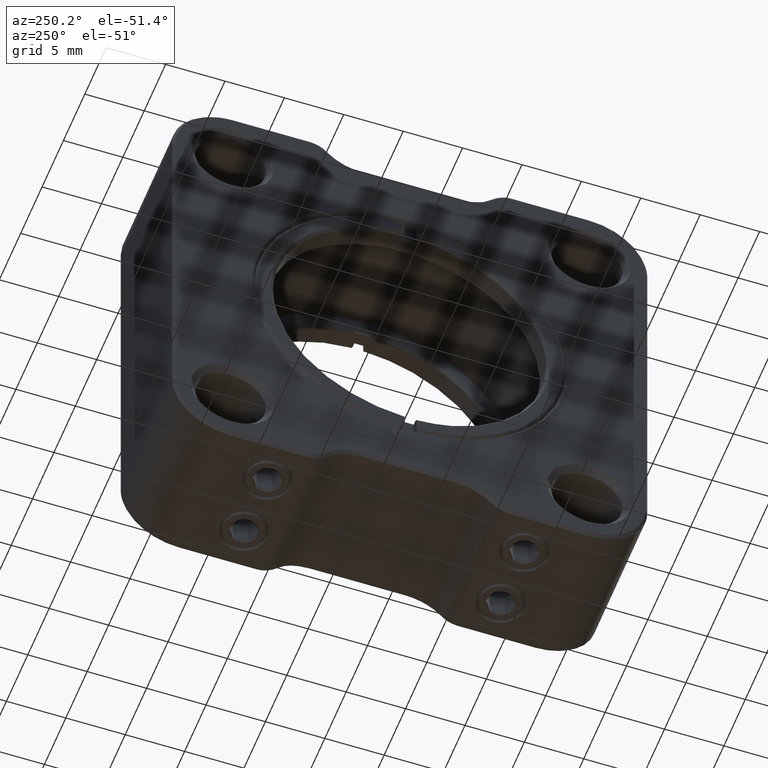
[diagram: clean part render]
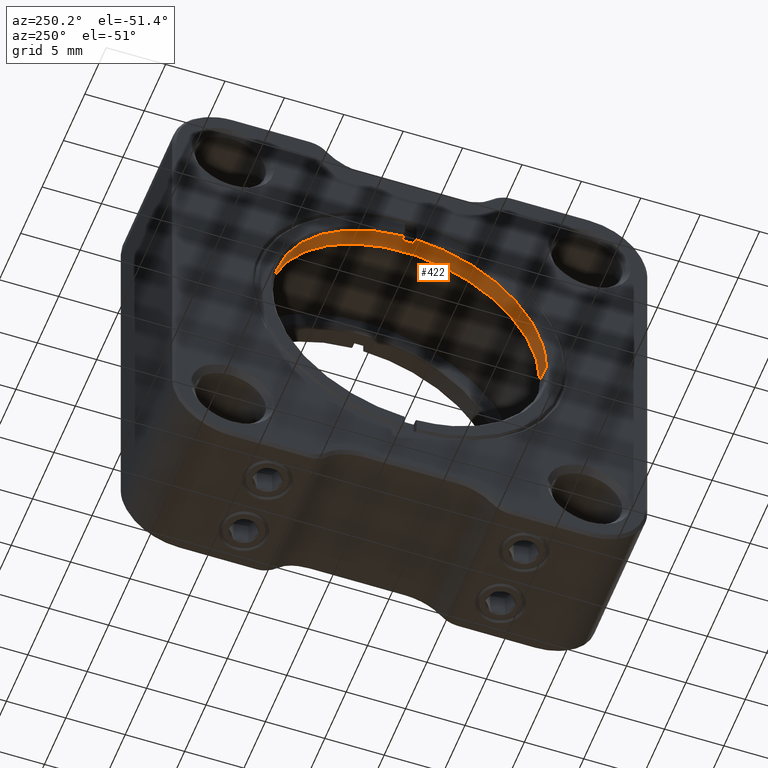
[diagram: same view with one face highlighted and labeled with its STEP entity id]
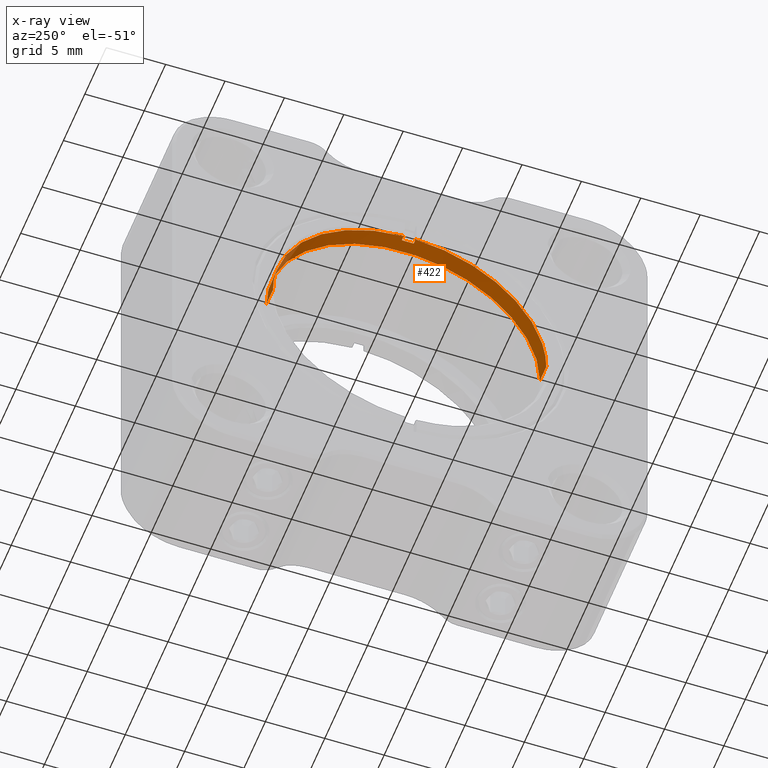
[diagram: x-ray of the same camera — body ghosted, the highlighted face saturated]
A machine part, auxiliary view. The second image highlights one B-rep face of the part: STEP entity #422.
The next image is the same camera in x-ray: the body ghosted, the highlighted face saturated — about 0% of this face is hidden behind the body in this view.
In plain terms, the highlighted face is a freeform B-spline surface patch.
Its self-contained STEP definition (entity closure, byte-faithful):
#5 = CARTESIAN_POINT ( 'NONE',  ( -20.25960063692989976, 2.275967890075781153, 51.50813033711986577 ) ) ;
#286 = ORIENTED_EDGE ( 'NONE', *, *, #10347, .T. ) ;
#306 = CARTESIAN_POINT ( 'NONE',  ( -20.25960063692989976, 1.609301223409109971, 51.49362955075549309 ) ) ;
#422 = ADVANCED_FACE ( 'NONE', ( #3724 ), #2092, .T. ) ;
#500 = CARTESIAN_POINT ( 'NONE',  ( -19.05960063692990047, -9.395198776590881096, 63.00900000000006429 ) ) ;
#574 = CARTESIAN_POINT ( 'NONE',  ( -20.70960063692990261, -4.899068598296539179, 51.21050010966101951 ) ) ;
#905 = CARTESIAN_POINT ( 'NONE',  ( -19.20960063692990261, 13.61380122340909793, 40.00000000000000000 ) ) ;
#1040 = CARTESIAN_POINT ( 'NONE',  ( -20.85960063692989763, -9.395198776590881096, 63.00900000000006429 ) ) ;
#1074 = VERTEX_POINT ( 'NONE', #10610 ) ;
#1201 = CARTESIAN_POINT ( 'NONE',  ( -20.25960063692989976, 2.609301223409109749, 51.49362955075549309 ) ) ;
#1511 = VERTEX_POINT ( 'NONE', #10658 ) ;
#1885 =( BOUNDED_CURVE ( )  B_SPLINE_CURVE ( 3, ( #6969, #11515, #10633, #2438 ),
 .UNSPECIFIED., .F., .F. ) 
 B_SPLINE_CURVE_WITH_KNOTS ( ( 4, 4 ),
 ( 0.000000000000000000, 1.000000000000000000 ),
 .UNSPECIFIED. ) 
 CURVE ( )  GEOMETRIC_REPRESENTATION_ITEM ( )  RATIONAL_B_SPLINE_CURVE ( ( 0.5002363333335543283, 0.5073257439408531688, 0.6739136328296684297, 1.000000000000000000 ) ) 
 REPRESENTATION_ITEM ( '' )  );
#1966 = CARTESIAN_POINT ( 'NONE',  ( -20.70960063692990261, -9.395198776590889977, 40.00000000000000000 ) ) ;
#2092 =( BOUNDED_SURFACE ( )  B_SPLINE_SURFACE ( 1, 3, ( 
 ( #4510, #3782, #1040, #2712 ),
 ( #11079, #4013, #500, #9511 ) ),
 .UNSPECIFIED., .F., .F., .F. ) 
 B_SPLINE_SURFACE_WITH_KNOTS ( ( 2, 2 ),
 ( 4, 4 ),
 ( 0.000000000000000000, 1.000000000000000000 ),
 ( 0.000000000000000000, 1.000000000000000000 ),
 .UNSPECIFIED. ) 
 GEOMETRIC_REPRESENTATION_ITEM ( )  RATIONAL_B_SPLINE_SURFACE ( (
 ( 1.000000000000000000, 0.3333333333333329818, 0.3333333333333329818, 1.000000000000000000),
 ( 1.000000000000000000, 0.3333333333333329818, 0.3333333333333329818, 1.000000000000000000) ) ) 
 REPRESENTATION_ITEM ( '' )  SURFACE ( )  );
#2277 = ORIENTED_EDGE ( 'NONE', *, *, #3977, .F. ) ;
#2395 = EDGE_CURVE ( 'NONE', #1511, #10201, #11396, .T. ) ;
#2438 = CARTESIAN_POINT ( 'NONE',  ( -20.70960063692990261, 13.61380122340909793, 40.00000000000000000 ) ) ;
#2712 = CARTESIAN_POINT ( 'NONE',  ( -20.85960063692990119, -9.395198776590889977, 40.00000000000000000 ) ) ;
#3121 = CARTESIAN_POINT ( 'NONE',  ( -20.70960063692990261, 13.61380122340909793, 40.00000000000000000 ) ) ;
#3458 = CARTESIAN_POINT ( 'NONE',  ( -19.20960063692990261, 13.61380122340909260, 63.00900000000006429 ) ) ;
#3591 = CARTESIAN_POINT ( 'NONE',  ( -20.25960063692989976, 2.609301223409109749, 51.49362955075549309 ) ) ;
#3724 = FACE_OUTER_BOUND ( 'NONE', #9222, .T. ) ;
#3765 = EDGE_CURVE ( 'NONE', #7309, #1074, #1885, .T. ) ;
#3782 = CARTESIAN_POINT ( 'NONE',  ( -20.85960063692989763, 13.61380122340909438, 63.00900000000006429 ) ) ;
#3977 = EDGE_CURVE ( 'NONE', #6809, #4760, #10592, .T. ) ;
#4013 = CARTESIAN_POINT ( 'NONE',  ( -19.05960063692990047, 13.61380122340909438, 63.00900000000006429 ) ) ;
#4354 = ORIENTED_EDGE ( 'NONE', *, *, #3765, .T. ) ;
#4510 = CARTESIAN_POINT ( 'NONE',  ( -20.85960063692990119, 13.61380122340909793, 40.00000000000000000 ) ) ;
#4760 = VERTEX_POINT ( 'NONE', #306 ) ;
#4988 = CARTESIAN_POINT ( 'NONE',  ( -20.70960079602225079, 1.609301218805345046, 51.49362955065549841 ) ) ;
#5126 = B_SPLINE_CURVE_WITH_KNOTS ( 'NONE', 1,
 ( #9336, #3121 ),
 .UNSPECIFIED., .F., .F.,
 ( 2, 2 ),
 ( 0.000000000000000000, 1.000000000000000000 ),
 .UNSPECIFIED. ) ;
#5178 = CARTESIAN_POINT ( 'NONE',  ( -19.20960063692990261, -9.395198776590889977, 40.00000000000000000 ) ) ;
#5280 =( BOUNDED_CURVE ( )  B_SPLINE_CURVE ( 3, ( #5178, #5358, #3458, #9729 ),
 .UNSPECIFIED., .F., .T. ) 
 B_SPLINE_CURVE_WITH_KNOTS ( ( 4, 4 ),
 ( 0.000000000000000000, 1.000000000000000000 ),
 .UNSPECIFIED. ) 
 CURVE ( )  GEOMETRIC_REPRESENTATION_ITEM ( )  RATIONAL_B_SPLINE_CURVE ( ( 1.000000000000000000, 0.3333333333333329818, 0.3333333333333329818, 1.000000000000000000 ) ) 
 REPRESENTATION_ITEM ( '' )  );
#5358 = CARTESIAN_POINT ( 'NONE',  ( -19.20960063692990261, -9.395198776590895307, 63.00900000000006429 ) ) ;
#5808 = EDGE_CURVE ( 'NONE', #10201, #9428, #9941, .T. ) ;
#5900 = CARTESIAN_POINT ( 'NONE',  ( -20.70960032779069948, 2.609301209985705139, 51.49362986021060351 ) ) ;
#6357 = CARTESIAN_POINT ( 'NONE',  ( -19.20960063692990261, -9.395198776590889977, 40.00000000000000000 ) ) ;
#6675 =( BOUNDED_CURVE ( )  B_SPLINE_CURVE ( 1, ( #9662, #5900 ),
 .UNSPECIFIED., .F., .F. ) 
 B_SPLINE_CURVE_WITH_KNOTS ( ( 2, 2 ),
 ( 0.000000000000000000, 1.000000000000000000 ),
 .UNSPECIFIED. ) 
 CURVE ( )  GEOMETRIC_REPRESENTATION_ITEM ( )  RATIONAL_B_SPLINE_CURVE ( ( 0.5002363333335544393, 0.5002363333335543283 ) ) 
 REPRESENTATION_ITEM ( '' )  );
#6809 = VERTEX_POINT ( 'NONE', #1201 ) ;
#6875 = CARTESIAN_POINT ( 'NONE',  ( -20.70960079602225079, 1.609301218805345046, 51.49362955065549841 ) ) ;
#6969 = CARTESIAN_POINT ( 'NONE',  ( -20.70960032779069948, 2.609301209985705139, 51.49362986021060351 ) ) ;
#7226 = EDGE_CURVE ( 'NONE', #9428, #11207, #5280, .T. ) ;
#7231 = CARTESIAN_POINT ( 'NONE',  ( -20.25960063692989976, 1.942634556742448115, 51.50813033711986577 ) ) ;
#7309 = VERTEX_POINT ( 'NONE', #9018 ) ;
#7514 = ORIENTED_EDGE ( 'NONE', *, *, #5808, .F. ) ;
#7681 = CARTESIAN_POINT ( 'NONE',  ( -20.70960063692990261, -9.395198776590889977, 40.00000000000000000 ) ) ;
#7838 = CARTESIAN_POINT ( 'NONE',  ( -20.70960063692990261, -9.395198776590889977, 40.00000000000000000 ) ) ;
#8615 = CARTESIAN_POINT ( 'NONE',  ( -20.25960063692989976, 1.609301223409109971, 51.49362955075549309 ) ) ;
#8737 = EDGE_CURVE ( 'NONE', #4760, #1511, #10867, .T. ) ;
#9018 = CARTESIAN_POINT ( 'NONE',  ( -20.70960032779069948, 2.609301209985705139, 51.49362986021060351 ) ) ;
#9063 = ORIENTED_EDGE ( 'NONE', *, *, #8737, .F. ) ;
#9222 = EDGE_LOOP ( 'NONE', ( #11762, #9063, #2277, #286, #4354, #10212, #11670, #7514 ) ) ;
#9336 = CARTESIAN_POINT ( 'NONE',  ( -19.20960063692990261, 13.61380122340909793, 40.00000000000000000 ) ) ;
#9428 = VERTEX_POINT ( 'NONE', #6357 ) ;
#9511 = CARTESIAN_POINT ( 'NONE',  ( -19.05960063692990047, -9.395198776590889977, 40.00000000000000000 ) ) ;
#9518 = EDGE_CURVE ( 'NONE', #11207, #1074, #5126, .T. ) ;
#9662 = CARTESIAN_POINT ( 'NONE',  ( -20.25960063692989976, 2.609301223409109749, 51.49362955075549309 ) ) ;
#9719 = CARTESIAN_POINT ( 'NONE',  ( -20.70960063692989550, -9.395198776590895307, 46.50373259085089472 ) ) ;
#9729 = CARTESIAN_POINT ( 'NONE',  ( -19.20960063692990261, 13.61380122340909793, 40.00000000000000000 ) ) ;
#9941 = B_SPLINE_CURVE_WITH_KNOTS ( 'NONE', 1,
 ( #7838, #11484 ),
 .UNSPECIFIED., .F., .F.,
 ( 2, 2 ),
 ( 0.000000000000000000, 1.000000000000000000 ),
 .UNSPECIFIED. ) ;
#10201 = VERTEX_POINT ( 'NONE', #1966 ) ;
#10212 = ORIENTED_EDGE ( 'NONE', *, *, #9518, .F. ) ;
#10347 = EDGE_CURVE ( 'NONE', #6809, #7309, #6675, .T. ) ;
#10592 = B_SPLINE_CURVE_WITH_KNOTS ( 'NONE', 3,
 ( #3591, #5, #7231, #10888 ),
 .UNSPECIFIED., .F., .F.,
 ( 4, 4 ),
 ( 0.000000000000000000, 1.000000000000000000 ),
 .UNSPECIFIED. ) ;
#10610 = CARTESIAN_POINT ( 'NONE',  ( -20.70960063692990261, 13.61380122340909793, 40.00000000000000000 ) ) ;
#10633 = CARTESIAN_POINT ( 'NONE',  ( -20.70960063692989550, 13.61380122340909615, 45.56667861927532925 ) ) ;
#10658 = CARTESIAN_POINT ( 'NONE',  ( -20.70960079602225079, 1.609301218805345046, 51.49362955065549841 ) ) ;
#10867 = B_SPLINE_CURVE_WITH_KNOTS ( 'NONE', 1,
 ( #8615, #6875 ),
 .UNSPECIFIED., .F., .F.,
 ( 2, 2 ),
 ( 0.000000000000000000, 1.000000000000000000 ),
 .UNSPECIFIED. ) ;
#10888 = CARTESIAN_POINT ( 'NONE',  ( -20.25960063692989976, 1.609301223409109971, 51.49362955075549309 ) ) ;
#11079 = CARTESIAN_POINT ( 'NONE',  ( -19.05960063692990047, 13.61380122340909793, 40.00000000000000000 ) ) ;
#11207 = VERTEX_POINT ( 'NONE', #905 ) ;
#11396 =( BOUNDED_CURVE ( )  B_SPLINE_CURVE ( 3, ( #4988, #574, #9719, #7681 ),
 .UNSPECIFIED., .F., .F. ) 
 B_SPLINE_CURVE_WITH_KNOTS ( ( 4, 4 ),
 ( 0.000000000000000000, 1.000000000000000000 ),
 .UNSPECIFIED. ) 
 CURVE ( )  GEOMETRIC_REPRESENTATION_ITEM ( )  RATIONAL_B_SPLINE_CURVE ( ( 0.9959548067400529892, 0.8125494767093766058, 0.8138978744626922390, 1.000000000000000000 ) ) 
 REPRESENTATION_ITEM ( '' )  );
#11484 = CARTESIAN_POINT ( 'NONE',  ( -19.20960063692990261, -9.395198776590889977, 40.00000000000000000 ) ) ;
#11515 = CARTESIAN_POINT ( 'NONE',  ( -20.70960063692990261, 9.996893811741006886, 51.17225184514442304 ) ) ;
#11670 = ORIENTED_EDGE ( 'NONE', *, *, #7226, .F. ) ;
#11762 = ORIENTED_EDGE ( 'NONE', *, *, #2395, .F. ) ;